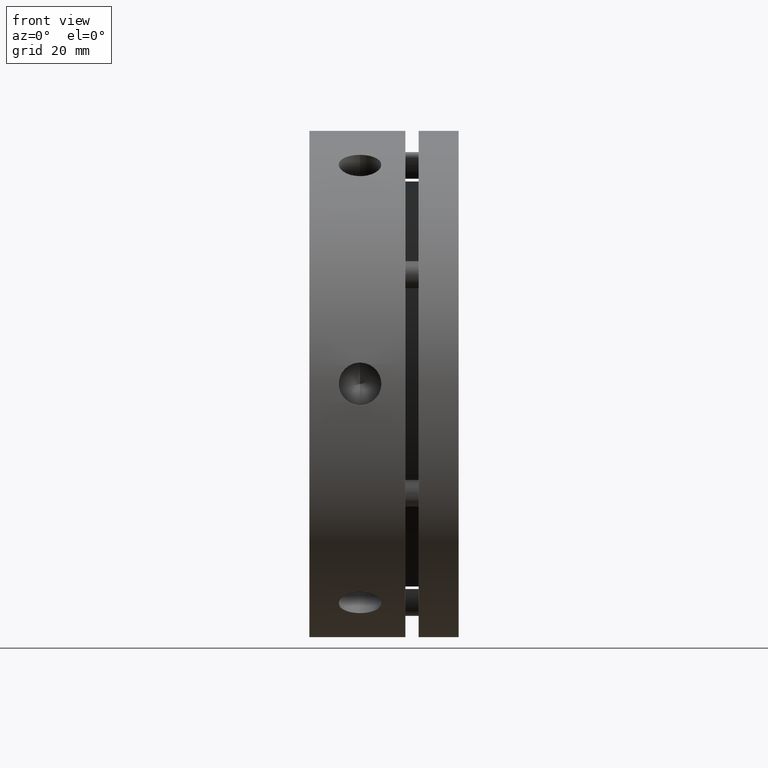
[diagram: clean part render]
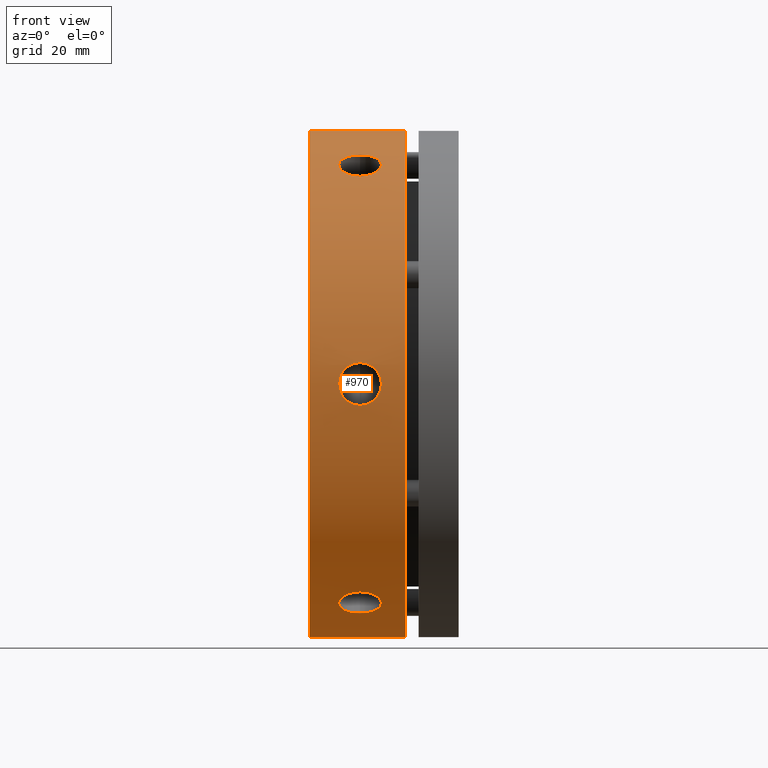
[diagram: same view with one face highlighted and labeled with its STEP entity id]
A machine part, front view. The second image highlights one B-rep face of the part: STEP entity #970.
In plain terms, the highlighted cylindrical surface (partial cylindrical patch) has radius 47.5 mm, axis along (1, 0, 0).
Its self-contained STEP definition (entity closure, byte-faithful):
#54 = VERTEX_POINT ( 'NONE', #1385 ) ;
#87 = VERTEX_POINT ( 'NONE', #1412 ) ;
#102 = VERTEX_POINT ( 'NONE', #1427 ) ;
#109 = VERTEX_POINT ( 'NONE', #1425 ) ;
#124 = VERTEX_POINT ( 'NONE', #1445 ) ;
#218 = VERTEX_POINT ( 'NONE', #1526 ) ;
#227 = VERTEX_POINT ( 'NONE', #1528 ) ;
#230 = VERTEX_POINT ( 'NONE', #1536 ) ;
#237 = VERTEX_POINT ( 'NONE', #1542 ) ;
#270 = VERTEX_POINT ( 'NONE', #1573 ) ;
#399 = CARTESIAN_POINT ( 'NONE',  ( 5.704031855840906200, -24.85716007581634600, 40.47752882744784800 ) ) ;
#970 = ADVANCED_FACE ( 'NONE', ( #3123, #3131, #3127, #3110 ), #3135, .T. ) ;
#1093 = B_SPLINE_CURVE_WITH_KNOTS ( 'NONE', 3,
 ( #3630, #3626, #3632, #3633, #3634, #3635, #3636, #3637, #3638, #3639, #3640, #3641, #3642, #3643, #3644, #3645, #3646, #3647, #3648, #3649, #3650, #3651, #3652, #3653, #3654, #3655, #3656, #3657, #3658, #3659, #3660, #3661, #3662, #3663 ),
 .UNSPECIFIED., .F., .F.,
 ( 4, 2, 2, 2, 2, 2, 2, 2, 2, 2, 2, 2, 2, 2, 2, 2, 4 ),
 ( 0.01876578023979333700, 0.01954757151326307800, 0.02032936278673281800, 0.02111115406020255800, 0.02189294533367230200, 0.02267473660714204200, 0.02345652788061178300, 0.02423831915408152700, 0.02502011042755127000, 0.02580190170102101100, 0.02658369297449075400, 0.02736548424796049500, 0.02814727552143023900, 0.02892906679489998200, 0.02971085806836972300, 0.03049264934183946700, 0.03127444061530920700 ),
 .UNSPECIFIED. ) ;
#1095 = B_SPLINE_CURVE_WITH_KNOTS ( 'NONE', 3,
 ( #2702, #2703, #2709, #2710, #2711, #2712, #2713, #2714, #2715, #2716, #2717, #2718, #2719, #2720, #2721, #2722, #2723, #2724, #2725, #2726, #2727, #2728, #2729, #2730, #2731, #2732, #2733, #2734, #2735, #2736, #2737, #2738, #2739, #2740 ),
 .UNSPECIFIED., .F., .F.,
 ( 4, 2, 2, 2, 2, 2, 2, 2, 2, 2, 2, 2, 2, 2, 2, 2, 4 ),
 ( 0.006257119855999899700, 0.007038911129986990000, 0.007820702403974080400, 0.008602493677961172600, 0.009384284951948263000, 0.01016607622593535300, 0.01094786749992244400, 0.01172965877390953400, 0.01251145004789662500, 0.01329324132188371500, 0.01407503259587080700, 0.01485682386985789700, 0.01563861514384498600, 0.01642040641783208000, 0.01720219769181917000, 0.01798398896580626100, 0.01876578023979335100 ),
 .UNSPECIFIED. ) ;
#1097 = B_SPLINE_CURVE_WITH_KNOTS ( 'NONE', 3,
 ( #3588, #3584, #3591, #3592, #3593, #3594, #3595, #3596, #3597, #3598, #3599, #3600, #3601, #3602, #3603, #3604, #3605, #3606, #3607, #3608, #3609, #3610, #3611, #3612, #3613, #3614, #3615, #3616, #3617, #3618, #3619, #3620, #3621, #3622 ),
 .UNSPECIFIED., .F., .F.,
 ( 4, 2, 2, 2, 2, 2, 2, 2, 2, 2, 2, 2, 2, 2, 2, 2, 4 ),
 ( 0.01876578023979334400, 0.01954757151326308500, 0.02032936278673282500, 0.02111115406020256500, 0.02189294533367230900, 0.02267473660714204900, 0.02345652788061179000, 0.02423831915408153300, 0.02502011042755127400, 0.02580190170102101400, 0.02658369297449075800, 0.02736548424796049800, 0.02814727552143023900, 0.02892906679489998200, 0.02971085806836971900, 0.03049264934183946300, 0.03127444061530920700 ),
 .UNSPECIFIED. ) ;
#1099 = B_SPLINE_CURVE_WITH_KNOTS ( 'NONE', 3,
 ( #2704, #2701, #2742, #2743, #2744, #2745, #2746, #2747, #2748, #2749, #2750, #2751, #2752, #2753, #2754, #2755, #2756, #2757, #2758, #2759, #2760, #2761, #2762, #2763, #2764, #2765, #2766, #2767, #2768, #2769, #2770, #2771, #2772, #2773 ),
 .UNSPECIFIED., .F., .F.,
 ( 4, 2, 2, 2, 2, 2, 2, 2, 2, 2, 2, 2, 2, 2, 2, 2, 4 ),
 ( 0.006257119855999912700, 0.007038911129987003100, 0.007820702403974092600, 0.008602493677961183000, 0.009384284951948273400, 0.01016607622593536400, 0.01094786749992245400, 0.01172965877390954500, 0.01251145004789663300, 0.01329324132188372400, 0.01407503259587081200, 0.01485682386985790300, 0.01563861514384499000, 0.01642040641783208000, 0.01720219769181917000, 0.01798398896580625700, 0.01876578023979334400 ),
 .UNSPECIFIED. ) ;
#1100 = B_SPLINE_CURVE_WITH_KNOTS ( 'NONE', 3,
 ( #2919, #2914, #2920, #2921, #2922, #2923, #2924, #2925, #2926, #2927, #2928, #2929, #2930, #399, #3561, #3562, #3563, #3564, #3565, #3566, #3567, #3568, #3569, #3570, #3571, #3572, #3573, #3574, #3575, #3576, #3577, #3578, #3579, #3580 ),
 .UNSPECIFIED., .F., .F.,
 ( 4, 2, 2, 2, 2, 2, 2, 2, 2, 2, 2, 2, 2, 2, 2, 2, 4 ),
 ( 0.01876578023979335100, 0.01954757151326309100, 0.02032936278673283200, 0.02111115406020257600, 0.02189294533367231600, 0.02267473660714206000, 0.02345652788061180400, 0.02423831915408154700, 0.02502011042755129100, 0.02580190170102103500, 0.02658369297449077900, 0.02736548424796051900, 0.02814727552143026300, 0.02892906679490000700, 0.02971085806836974700, 0.03049264934183949100, 0.03127444061530923500 ),
 .UNSPECIFIED. ) ;
#1101 = B_SPLINE_CURVE_WITH_KNOTS ( 'NONE', 3,
 ( #2708, #2741, #2774, #2775, #2776, #2777, #2778, #2779, #2780, #2781, #2782, #2783, #2784, #2785, #2786, #2787, #2788, #2789, #2790, #2791, #2792, #2793, #2794, #2795, #2796, #2797, #2798, #2799, #2800, #2801, #2802, #2803, #2804, #2805 ),
 .UNSPECIFIED., .F., .F.,
 ( 4, 2, 2, 2, 2, 2, 2, 2, 2, 2, 2, 2, 2, 2, 2, 2, 4 ),
 ( 0.006257119855999903100, 0.007038911129986992600, 0.007820702403974082200, 0.008602493677961172600, 0.009384284951948261200, 0.01016607622593535200, 0.01094786749992244000, 0.01172965877390953100, 0.01251145004789662100, 0.01329324132188371000, 0.01407503259587080000, 0.01485682386985788900, 0.01563861514384497900, 0.01642040641783206600, 0.01720219769181916000, 0.01798398896580624700, 0.01876578023979333700 ),
 .UNSPECIFIED. ) ;
#1385 = CARTESIAN_POINT ( 'NONE',  ( -1.387778780781445700E-014, 0.0000000000000000000, -47.50000000000000000 ) ) ;
#1412 = CARTESIAN_POINT ( 'NONE',  ( 9.499999999999989300, -47.33127929815546500, 4.000000000000012400 ) ) ;
#1425 = CARTESIAN_POINT ( 'NONE',  ( 17.99999999999999300, 5.817072295949928200E-015, 47.50000000000000000 ) ) ;
#1427 = CARTESIAN_POINT ( 'NONE',  ( 9.499999999999989300, -27.12974126421548200, 38.99009026581912700 ) ) ;
#1445 = CARTESIAN_POINT ( 'NONE',  ( 9.499999999999989300, -27.12974126421550000, -38.99009026581911300 ) ) ;
#1526 = CARTESIAN_POINT ( 'NONE',  ( 17.99999999999999300, 0.0000000000000000000, -47.50000000000000000 ) ) ;
#1528 = CARTESIAN_POINT ( 'NONE',  ( 9.499999999999989300, -47.33127929815547200, -3.999999999999988000 ) ) ;
#1536 = CARTESIAN_POINT ( 'NONE',  ( 9.499999999999989300, -20.20153803393997500, 42.99009026581912700 ) ) ;
#1542 = CARTESIAN_POINT ( 'NONE',  ( -1.387778780781445700E-014, 5.817072295949928200E-015, 47.50000000000000000 ) ) ;
#1573 = CARTESIAN_POINT ( 'NONE',  ( 9.499999999999989300, -20.20153803393999000, -42.99009026581912000 ) ) ;
#1784 = CIRCLE ( 'NONE', #1901, 47.50000000000000000 ) ;
#1786 = CIRCLE ( 'NONE', #1900, 47.50000000000000000 ) ;
#1827 = LINE ( 'NONE', #2893, #1830 ) ;
#1830 = VECTOR ( 'NONE', #2906, 1000.000000000000000 ) ;
#1900 = AXIS2_PLACEMENT_3D ( 'NONE', #2705, #2706, #2707 ) ;
#1901 = AXIS2_PLACEMENT_3D ( 'NONE', #2806, #2807, #2808 ) ;
#2326 = DIRECTION ( 'NONE',  ( 0.0000000000000000000, 0.0000000000000000000, -1.000000000000000000 ) ) ;
#2327 = CARTESIAN_POINT ( 'NONE',  ( 13.99999999999998800, 0.0000000000000000000, 0.0000000000000000000 ) ) ;
#2328 = DIRECTION ( 'NONE',  ( 1.000000000000000000, 0.0000000000000000000, 0.0000000000000000000 ) ) ;
#2701 = CARTESIAN_POINT ( 'NONE',  ( 9.760971475047595500, -47.33127929815546500, 4.000000000000013300 ) ) ;
#2702 = CARTESIAN_POINT ( 'NONE',  ( 9.499999999999989300, -20.20153803393997500, 42.99009026581912700 ) ) ;
#2703 = CARTESIAN_POINT ( 'NONE',  ( 9.760971475047595500, -20.20153803393997500, 42.99009026581912700 ) ) ;
#2704 = CARTESIAN_POINT ( 'NONE',  ( 9.499999999999989300, -47.33127929815546500, 4.000000000000012400 ) ) ;
#2705 = CARTESIAN_POINT ( 'NONE',  ( -1.387778780781445700E-014, 0.0000000000000000000, 0.0000000000000000000 ) ) ;
#2706 = DIRECTION ( 'NONE',  ( 1.000000000000000000, 0.0000000000000000000, 0.0000000000000000000 ) ) ;
#2707 = DIRECTION ( 'NONE',  ( 0.0000000000000000000, 0.0000000000000000000, -1.000000000000000000 ) ) ;
#2708 = CARTESIAN_POINT ( 'NONE',  ( 9.499999999999989300, -27.12974126421550000, -38.99009026581911300 ) ) ;
#2709 = CARTESIAN_POINT ( 'NONE',  ( 10.02605248715087100, -20.22527848975132900, 42.97895701298615000 ) ) ;
#2710 = CARTESIAN_POINT ( 'NONE',  ( 10.53902095489192800, -20.31814011013791100, 42.93513501058210100 ) ) ;
#2711 = CARTESIAN_POINT ( 'NONE',  ( 10.78835630134450200, -20.38675315658765500, 42.90268539120922500 ) ) ;
#2712 = CARTESIAN_POINT ( 'NONE',  ( 11.27265317463121100, -20.56827545044507800, 42.81595687403627400 ) ) ;
#2713 = CARTESIAN_POINT ( 'NONE',  ( 11.50665646910271000, -20.68150517497733900, 42.76150624024155900 ) ) ;
#2714 = CARTESIAN_POINT ( 'NONE',  ( 11.93982301659374400, -20.94247978508939700, 42.63430089362267900 ) ) ;
#2715 = CARTESIAN_POINT ( 'NONE',  ( 12.14175708357037400, -21.09113505600706500, 42.56112082860320800 ) ) ;
#2716 = CARTESIAN_POINT ( 'NONE',  ( 12.51516527025346200, -21.42566116510206000, 42.39370269009219100 ) ) ;
#2717 = CARTESIAN_POINT ( 'NONE',  ( 12.68059165872984900, -21.60613950822939000, 42.30214808877768500 ) ) ;
#2718 = CARTESIAN_POINT ( 'NONE',  ( 12.97012770340554900, -21.99136320819733800, 42.10317020865641500 ) ) ;
#2719 = CARTESIAN_POINT ( 'NONE',  ( 13.09533123176346300, -22.19859148146204600, 41.99441967078477200 ) ) ;
#2720 = CARTESIAN_POINT ( 'NONE',  ( 13.29597052502822400, -22.62599432129031000, 41.76569319692626400 ) ) ;
#2721 = CARTESIAN_POINT ( 'NONE',  ( 13.37158336742036400, -22.84501087679316500, 41.64638291787606800 ) ) ;
#2722 = CARTESIAN_POINT ( 'NONE',  ( 13.47385331339546100, -23.29324201040375200, 41.39735026240109100 ) ) ;
#2723 = CARTESIAN_POINT ( 'NONE',  ( 13.50018660761995200, -23.52355385554325600, 41.26696356755591200 ) ) ;
#2724 = CARTESIAN_POINT ( 'NONE',  ( 13.49981137718473800, -23.98136361391737700, 41.00261049369551400 ) ) ;
#2725 = CARTESIAN_POINT ( 'NONE',  ( 13.47368411254465300, -24.20532212612001300, 40.87074437608968200 ) ) ;
#2726 = CARTESIAN_POINT ( 'NONE',  ( 13.37167309434663700, -24.64387569992174300, 40.60781643442192700 ) ) ;
#2727 = CARTESIAN_POINT ( 'NONE',  ( 13.29453926093430000, -24.86072786733938100, 40.47533652644045800 ) ) ;
#2728 = CARTESIAN_POINT ( 'NONE',  ( 13.09343942601985600, -25.27217432394408500, 40.21971981457219400 ) ) ;
#2729 = CARTESIAN_POINT ( 'NONE',  ( 12.97043680107246500, -25.46637820330576600, 40.09689371353224600 ) ) ;
#2730 = CARTESIAN_POINT ( 'NONE',  ( 12.67990342529005500, -25.83249811703567300, 39.86200377930663300 ) ) ;
#2731 = CARTESIAN_POINT ( 'NONE',  ( 12.51091927556935300, -26.00497186186153800, 39.74953474234474300 ) ) ;
#2732 = CARTESIAN_POINT ( 'NONE',  ( 12.14186292159515000, -26.31312487353759600, 39.54622021329849000 ) ) ;
#2733 = CARTESIAN_POINT ( 'NONE',  ( 11.94048292126166900, -26.45089611231988900, 39.45404336207128200 ) ) ;
#2734 = CARTESIAN_POINT ( 'NONE',  ( 11.50311538795404500, -26.69364967102421800, 39.29020883122879600 ) ) ;
#2735 = CARTESIAN_POINT ( 'NONE',  ( 11.27045504910944600, -26.79636665656028400, 39.22008053777917500 ) ) ;
#2736 = CARTESIAN_POINT ( 'NONE',  ( 10.78912952688679300, -26.96112870958003400, 39.10700093446387600 ) ) ;
#2737 = CARTESIAN_POINT ( 'NONE',  ( 10.53690245047147100, -27.02440957800023100, 39.06320430707126000 ) ) ;
#2738 = CARTESIAN_POINT ( 'NONE',  ( 10.02055990650838900, -27.10891618732090800, 39.00460622701263700 ) ) ;
#2739 = CARTESIAN_POINT ( 'NONE',  ( 9.760971088509428700, -27.12974126421548200, 38.99009026581912700 ) ) ;
#2740 = CARTESIAN_POINT ( 'NONE',  ( 9.499999999999989300, -27.12974126421548200, 38.99009026581912700 ) ) ;
#2741 = CARTESIAN_POINT ( 'NONE',  ( 9.760971475047595500, -27.12974126421549300, -38.99009026581911300 ) ) ;
#2742 = CARTESIAN_POINT ( 'NONE',  ( 10.02605248715087100, -47.33350784628103700, 3.973873535753463600 ) ) ;
#2743 = CARTESIAN_POINT ( 'NONE',  ( 10.53902095489193200, -47.34198768914772200, 3.871542012260076800 ) ) ;
#2744 = CARTESIAN_POINT ( 'NONE',  ( 10.78835630134450200, -47.34819201765252900, 3.795896561317114900 ) ) ;
#2745 = CARTESIAN_POINT ( 'NONE',  ( 11.27265317463121100, -47.36384406547690400, 3.595329384896891200 ) ) ;
#2746 = CARTESIAN_POINT ( 'NONE',  ( 11.50665646910270300, -47.37330329562466600, 3.470044250091086200 ) ) ;
#2747 = CARTESIAN_POINT ( 'NONE',  ( 11.93982301659374200, -47.39362753901151100, 3.180430934681860700 ) ) ;
#2748 = CARTESIAN_POINT ( 'NONE',  ( 12.14175708357036700, -47.40457937911289600, 3.015101661150972700 ) ) ;
#2749 = CARTESIAN_POINT ( 'NONE',  ( 12.51516527025345300, -47.42685407265555900, 2.641684483190027200 ) ) ;
#2750 = CARTESIAN_POINT ( 'NONE',  ( 12.68059165872984400, -47.43780463364751700, 2.439608352551585900 ) ) ;
#2751 = CARTESIAN_POINT ( 'NONE',  ( 12.97012770340554500, -47.45809658465528000, 2.006505902178871800 ) ) ;
#2752 = CARTESIAN_POINT ( 'NONE',  ( 13.09533123176346000, -47.46752999281557100, 1.772665684213433200 ) ) ;
#2753 = CARTESIAN_POINT ( 'NONE',  ( 13.29597052502822200, -47.48314847585020000, 1.288160730343287200 ) ) ;
#2754 = CARTESIAN_POINT ( 'NONE',  ( 13.37158336742035800, -47.48933102101155200, 1.038831689903349800 ) ) ;
#2755 = CARTESIAN_POINT ( 'NONE',  ( 13.47385331339546400, -47.49777798180363700, 0.5261358136920018000 ) ) ;
#2756 = CARTESIAN_POINT ( 'NONE',  ( 13.50018660761995500, -47.50001571432195400, 0.2614865575861264900 ) ) ;
#2757 = CARTESIAN_POINT ( 'NONE',  ( 13.49981137718474000, -47.49998411597741900, -0.2671648601964621300 ) ) ;
#2758 = CARTESIAN_POINT ( 'NONE',  ( 13.47368411254465500, -47.49776396433364300, -0.5270516799606372900 ) ) ;
#2759 = CARTESIAN_POINT ( 'NONE',  ( 13.37167309434663700, -47.48933847438548400, -1.038314186627276000 ) ) ;
#2760 = CARTESIAN_POINT ( 'NONE',  ( 13.29453926093429700, -47.48303359229132100, -1.292353626467387200 ) ) ;
#2761 = CARTESIAN_POINT ( 'NONE',  ( 13.09343942601985800, -47.46738625448392700, -1.776485066118290900 ) ) ;
#2762 = CARTESIAN_POINT ( 'NONE',  ( 12.97043680107246500, -47.45811767041635700, -2.006083609678971600 ) ) ;
#2763 = CARTESIAN_POINT ( 'NONE',  ( 12.67990342529005200, -47.43775697714867300, -2.440597722913236700 ) ) ;
#2764 = CARTESIAN_POINT ( 'NONE',  ( 12.51091927556935500, -47.42659280641343900, -2.646198885899223400 ) ) ;
#2765 = CARTESIAN_POINT ( 'NONE',  ( 12.14186292159515000, -47.40459376513897600, -3.014724486786499700 ) ) ;
#2766 = CARTESIAN_POINT ( 'NONE',  ( 11.94048292126166400, -47.39365188972649200, -3.180126305096422800 ) ) ;
#2767 = CARTESIAN_POINT ( 'NONE',  ( 11.50311538795404000, -47.37314380335194400, -3.472274319214686800 ) ) ;
#2768 = CARTESIAN_POINT ( 'NONE',  ( 11.27045504910944000, -47.36376941246855000, -3.596293984813898600 ) ) ;
#2769 = CARTESIAN_POINT ( 'NONE',  ( 10.78912952688678800, -47.34822062985752900, -3.795521909966320000 ) ) ;
#2770 = CARTESIAN_POINT ( 'NONE',  ( 10.53690245047146100, -47.34193207214553200, -3.872223063288064500 ) ) ;
#2771 = CARTESIAN_POINT ( 'NONE',  ( 10.02055990650838200, -47.33343795086209100, -3.974706973776774200 ) ) ;
#2772 = CARTESIAN_POINT ( 'NONE',  ( 9.760971088509421600, -47.33127929815544400, -3.999999999999986200 ) ) ;
#2773 = CARTESIAN_POINT ( 'NONE',  ( 9.499999999999989300, -47.33127929815547200, -3.999999999999988000 ) ) ;
#2774 = CARTESIAN_POINT ( 'NONE',  ( 10.02605248715087100, -27.10822935652970100, -39.00508347723268800 ) ) ;
#2775 = CARTESIAN_POINT ( 'NONE',  ( 10.53902095489192800, -27.02384757900981100, -39.06359299832202200 ) ) ;
#2776 = CARTESIAN_POINT ( 'NONE',  ( 10.78835630134450200, -26.96143886106489200, -39.10678882989211800 ) ) ;
#2777 = CARTESIAN_POINT ( 'NONE',  ( 11.27265317463121100, -26.79556861503184000, -39.22062748913937500 ) ) ;
#2778 = CARTESIAN_POINT ( 'NONE',  ( 11.50665646910271500, -26.69179812064733100, -39.29146199015048800 ) ) ;
#2779 = CARTESIAN_POINT ( 'NONE',  ( 11.93982301659375100, -26.45114775392213600, -39.45386995894082100 ) ) ;
#2780 = CARTESIAN_POINT ( 'NONE',  ( 12.14175708357037000, -26.31344432310586300, -39.54601916745225100 ) ) ;
#2781 = CARTESIAN_POINT ( 'NONE',  ( 12.51516527025345800, -26.00119290755351300, -39.75201820690217100 ) ) ;
#2782 = CARTESIAN_POINT ( 'NONE',  ( 12.68059165872984700, -25.83166512541813000, -39.86253973622610400 ) ) ;
#2783 = CARTESIAN_POINT ( 'NONE',  ( 12.97012770340554900, -25.46673337645796300, -40.09666430647755000 ) ) ;
#2784 = CARTESIAN_POINT ( 'NONE',  ( 13.09533123176346300, -25.26893851135354300, -40.22175398657134300 ) ) ;
#2785 = CARTESIAN_POINT ( 'NONE',  ( 13.29597052502822400, -24.85715415455990000, -40.47753246658298600 ) ) ;
#2786 = CARTESIAN_POINT ( 'NONE',  ( 13.37158336742036400, -24.64432014421839400, -40.60755122797272100 ) ) ;
#2787 = CARTESIAN_POINT ( 'NONE',  ( 13.47385331339546100, -24.20453597139987800, -40.87121444870909700 ) ) ;
#2788 = CARTESIAN_POINT ( 'NONE',  ( 13.50018660761995200, -23.97646185877870600, -41.00547700996978800 ) ) ;
#2789 = CARTESIAN_POINT ( 'NONE',  ( 13.49981137718473800, -23.51862050206004900, -41.26977535389198700 ) ) ;
#2790 = CARTESIAN_POINT ( 'NONE',  ( 13.47368411254465100, -23.29244183821364400, -41.39779605605033200 ) ) ;
#2791 = CARTESIAN_POINT ( 'NONE',  ( 13.37167309434663500, -22.84546277446374400, -41.64613062104919500 ) ) ;
#2792 = CARTESIAN_POINT ( 'NONE',  ( 13.29453926093430000, -22.62230572495196400, -41.76769015290785300 ) ) ;
#2793 = CARTESIAN_POINT ( 'NONE',  ( 13.09343942601985400, -22.19521193053984500, -41.99620488069049200 ) ) ;
#2794 = CARTESIAN_POINT ( 'NONE',  ( 12.97043680107246600, -21.99173946711060900, -42.10297732321121300 ) ) ;
#2795 = CARTESIAN_POINT ( 'NONE',  ( 12.67990342529005500, -21.60525886011302900, -42.30260150221987200 ) ) ;
#2796 = CARTESIAN_POINT ( 'NONE',  ( 12.51091927556935300, -21.42162094455191800, -42.39573362824397400 ) ) ;
#2797 = CARTESIAN_POINT ( 'NONE',  ( 12.14186292159515200, -21.09146889160137300, -42.56094470008500300 ) ) ;
#2798 = CARTESIAN_POINT ( 'NONE',  ( 11.94048292126166400, -20.94275577740659600, -42.63416966716771100 ) ) ;
#2799 = CARTESIAN_POINT ( 'NONE',  ( 11.50311538795404300, -20.67949413232773600, -42.76248315044347900 ) ) ;
#2800 = CARTESIAN_POINT ( 'NONE',  ( 11.27045504910943800, -20.56740275590827200, -42.81637452259308000 ) ) ;
#2801 = CARTESIAN_POINT ( 'NONE',  ( 10.78912952688678400, -20.38709192027749500, -42.90252284443019400 ) ) ;
#2802 = CARTESIAN_POINT ( 'NONE',  ( 10.53690245047146200, -20.31752249414530500, -42.93542737035934200 ) ) ;
#2803 = CARTESIAN_POINT ( 'NONE',  ( 10.02055990650838200, -20.22452176354119800, -42.97931320078940600 ) ) ;
#2804 = CARTESIAN_POINT ( 'NONE',  ( 9.760971088509427000, -20.20153803393998600, -42.99009026581912000 ) ) ;
#2805 = CARTESIAN_POINT ( 'NONE',  ( 9.499999999999989300, -20.20153803393999000, -42.99009026581912000 ) ) ;
#2806 = CARTESIAN_POINT ( 'NONE',  ( 17.99999999999999300, 0.0000000000000000000, 0.0000000000000000000 ) ) ;
#2807 = DIRECTION ( 'NONE',  ( -1.000000000000000000, -0.0000000000000000000, -0.0000000000000000000 ) ) ;
#2808 = DIRECTION ( 'NONE',  ( 0.0000000000000000000, 0.0000000000000000000, -1.000000000000000000 ) ) ;
#2893 = CARTESIAN_POINT ( 'NONE',  ( 13.99999999999998800, 0.0000000000000000000, -47.50000000000000000 ) ) ;
#2906 = DIRECTION ( 'NONE',  ( 1.000000000000000000, 0.0000000000000000000, 0.0000000000000000000 ) ) ;
#2914 = CARTESIAN_POINT ( 'NONE',  ( 9.239028911663249100, -27.12974126421548200, 38.99009026581913400 ) ) ;
#2919 = CARTESIAN_POINT ( 'NONE',  ( 9.499999999999989300, -27.12974126421548200, 38.99009026581912700 ) ) ;
#2920 = CARTESIAN_POINT ( 'NONE',  ( 8.973948294362534400, -27.10822942104241700, 39.00508343220000300 ) ) ;
#2921 = CARTESIAN_POINT ( 'NONE',  ( 8.460980543964389300, -27.02384788961078900, 39.06359278325446400 ) ) ;
#2922 = CARTESIAN_POINT ( 'NONE',  ( 8.211645535757149600, -26.96143935264534300, 39.10678849021783100 ) ) ;
#2923 = CARTESIAN_POINT ( 'NONE',  ( 7.727349294091225400, -26.79556959818216600, 39.22062681668896300 ) ) ;
#2924 = CARTESIAN_POINT ( 'NONE',  ( 7.493346229924173800, -26.69179939094754100, 39.29146112572402000 ) ) ;
#2925 = CARTESIAN_POINT ( 'NONE',  ( 7.060180061226575700, -26.45114969300890800, 39.45386865744479400 ) ) ;
#2926 = CARTESIAN_POINT ( 'NONE',  ( 6.858246142036367800, -26.31344664734432500, 39.54601761841193100 ) ) ;
#2927 = CARTESIAN_POINT ( 'NONE',  ( 6.484838143995224500, -26.00119613568871200, 39.75201609292074100 ) ) ;
#2928 = CARTESIAN_POINT ( 'NONE',  ( 6.319411652311662100, -25.83166871601191900, 39.86253740652598800 ) ) ;
#2929 = CARTESIAN_POINT ( 'NONE',  ( 6.029875421132860700, -25.46673789726769100, 40.09666143224821200 ) ) ;
#2930 = CARTESIAN_POINT ( 'NONE',  ( 5.904671738956798400, -25.26894357346547800, 40.22175080342284300 ) ) ;
#3110 = FACE_BOUND ( 'NONE', #3390, .T. ) ;
#3123 = FACE_OUTER_BOUND ( 'NONE', #3388, .T. ) ;
#3127 = FACE_BOUND ( 'NONE', #3391, .T. ) ;
#3131 = FACE_BOUND ( 'NONE', #3393, .T. ) ;
#3135 = CYLINDRICAL_SURFACE ( 'NONE', #4656, 47.50000000000000000 ) ;
#3388 = EDGE_LOOP ( 'NONE', ( #4566, #4565, #4564, #4563 ) ) ;
#3390 = EDGE_LOOP ( 'NONE', ( #4556, #4555 ) ) ;
#3391 = EDGE_LOOP ( 'NONE', ( #4560, #4559 ) ) ;
#3393 = EDGE_LOOP ( 'NONE', ( #4562, #4561 ) ) ;
#3464 = EDGE_CURVE ( 'NONE', #237, #54, #1786, .T. ) ;
#3465 = EDGE_CURVE ( 'NONE', #230, #102, #1095, .T. ) ;
#3466 = EDGE_CURVE ( 'NONE', #87, #227, #1099, .T. ) ;
#3467 = EDGE_CURVE ( 'NONE', #124, #270, #1101, .T. ) ;
#3468 = EDGE_CURVE ( 'NONE', #218, #109, #1784, .T. ) ;
#3561 = CARTESIAN_POINT ( 'NONE',  ( 5.628418660750588400, -24.64432651335752300, 40.60754735928222900 ) ) ;
#3562 = CARTESIAN_POINT ( 'NONE',  ( 5.526147840892643400, -24.20454328748996500, 40.87121011271074200 ) ) ;
#3563 = CARTESIAN_POINT ( 'NONE',  ( 5.499814006007952100, -23.97647039748858300, 41.00547202047545900 ) ) ;
#3564 = CARTESIAN_POINT ( 'NONE',  ( 5.500187995876750300, -23.51862823127780200, 41.26977095238820000 ) ) ;
#3565 = CARTESIAN_POINT ( 'NONE',  ( 5.526314746948722600, -23.29244917393169700, 41.39779193149617200 ) ) ;
#3566 = CARTESIAN_POINT ( 'NONE',  ( 5.628324874620855800, -22.84546933546991500, 41.64612702479961100 ) ) ;
#3567 = CARTESIAN_POINT ( 'NONE',  ( 5.705458313430527000, -22.62231191270786500, 41.76768680485206200 ) ) ;
#3568 = CARTESIAN_POINT ( 'NONE',  ( 5.906557640547390500, -22.19521712434566400, 41.99620213908883700 ) ) ;
#3569 = CARTESIAN_POINT ( 'NONE',  ( 6.029560090688915100, -21.99174419758032400, 42.10297485494645300 ) ) ;
#3570 = CARTESIAN_POINT ( 'NONE',  ( 6.320093230973155200, -21.60526271236529500, 42.30259953735394200 ) ) ;
#3571 = CARTESIAN_POINT ( 'NONE',  ( 6.489077374479884400, -21.42162431737642700, 42.39573192620109400 ) ) ;
#3572 = CARTESIAN_POINT ( 'NONE',  ( 6.858133871741749500, -21.09147138422787300, 42.56094346700289300 ) ) ;
#3573 = CARTESIAN_POINT ( 'NONE',  ( 7.059513996358612400, -20.94275787940473100, 42.63416863596425800 ) ) ;
#3574 = CARTESIAN_POINT ( 'NONE',  ( 7.496881866757592900, -20.67949553814117900, 42.76248247194271800 ) ) ;
#3575 = CARTESIAN_POINT ( 'NONE',  ( 7.729542514548992200, -20.56740381522990500, 42.81637401440468700 ) ) ;
#3576 = CARTESIAN_POINT ( 'NONE',  ( 8.210868633865267400, -20.38709246264886200, 42.90252258736691700 ) ) ;
#3577 = CARTESIAN_POINT ( 'NONE',  ( 8.463096024885052400, -20.31752283979970400, 42.93542720697618600 ) ) ;
#3578 = CARTESIAN_POINT ( 'NONE',  ( 8.979439324812879900, -20.22452183094743800, 42.97931316925463800 ) ) ;
#3579 = CARTESIAN_POINT ( 'NONE',  ( 9.239028525125077000, -20.20153803393996800, 42.99009026581912000 ) ) ;
#3580 = CARTESIAN_POINT ( 'NONE',  ( 9.499999999999989300, -20.20153803393997500, 42.99009026581912700 ) ) ;
#3584 = CARTESIAN_POINT ( 'NONE',  ( 9.239028911663247400, -47.33127929815546500, -3.999999999999988000 ) ) ;
#3588 = CARTESIAN_POINT ( 'NONE',  ( 9.499999999999989300, -47.33127929815547200, -3.999999999999988000 ) ) ;
#3591 = CARTESIAN_POINT ( 'NONE',  ( 8.973948294362532600, -47.33350783953793700, -3.973873614139450600 ) ) ;
#3592 = CARTESIAN_POINT ( 'NONE',  ( 8.460980543964391000, -47.34198765819422100, -3.871542388782190700 ) ) ;
#3593 = CARTESIAN_POINT ( 'NONE',  ( 8.211645535757140700, -47.34819196927620100, -3.795897156875411400 ) ) ;
#3594 = CARTESIAN_POINT ( 'NONE',  ( 7.727349294091217400, -47.36384397469290500, -3.595330572555246900 ) ) ;
#3595 = CARTESIAN_POINT ( 'NONE',  ( 7.493346229924165800, -47.37330318215949600, -3.470045782416549200 ) ) ;
#3596 = CARTESIAN_POINT ( 'NONE',  ( 7.060180061226565100, -47.39362738142629200, -3.180433264728257800 ) ) ;
#3597 = CARTESIAN_POINT ( 'NONE',  ( 6.858246142036364300, -47.40457919972386200, -3.015104448520674400 ) ) ;
#3598 = CARTESIAN_POINT ( 'NONE',  ( 6.484838143995218300, -47.42685385596153200, -2.641688335827816500 ) ) ;
#3599 = CARTESIAN_POINT ( 'NONE',  ( 6.319411652311657700, -47.43780441136490800, -2.439612626947071500 ) ) ;
#3600 = CARTESIAN_POINT ( 'NONE',  ( 6.029875421132857100, -47.45809635590452300, -2.006511254429590000 ) ) ;
#3601 = CARTESIAN_POINT ( 'NONE',  ( 5.904671738956794000, -47.46752976718408200, -1.772671659705197700 ) ) ;
#3602 = CARTESIAN_POINT ( 'NONE',  ( 5.704031855840901800, -47.48314828489493100, -1.288167677869344300 ) ) ;
#3603 = CARTESIAN_POINT ( 'NONE',  ( 5.628418660750587500, -47.48933085519687600, -1.038839140084870900 ) ) ;
#3604 = CARTESIAN_POINT ( 'NONE',  ( 5.526147840892645200, -47.49777788476394800, -0.5261443176110329700 ) ) ;
#3605 = CARTESIAN_POINT ( 'NONE',  ( 5.499814006007951200, -47.50001566264805300, -0.2614964470729435600 ) ) ;
#3606 = CARTESIAN_POINT ( 'NONE',  ( 5.500187995876753000, -47.49998416877218700, 0.2671559657456639100 ) ) ;
#3607 = CARTESIAN_POINT ( 'NONE',  ( 5.526314746948723500, -47.49776406022398600, 0.5270432647653891000 ) ) ;
#3608 = CARTESIAN_POINT ( 'NONE',  ( 5.628324874620860300, -47.48933864044504800, 1.038306706504470000 ) ) ;
#3609 = CARTESIAN_POINT ( 'NONE',  ( 5.705458313430532300, -47.48303378666791000, 1.292346593685709700 ) ) ;
#3610 = CARTESIAN_POINT ( 'NONE',  ( 5.906557640547394100, -47.46738647709014500, 1.776479197349700700 ) ) ;
#3611 = CARTESIAN_POINT ( 'NONE',  ( 6.029560090688916900, -47.45811789807123700, 2.006078278839653200 ) ) ;
#3612 = CARTESIAN_POINT ( 'NONE',  ( 6.320093230973154300, -47.43775720165100300, 2.440593404331954800 ) ) ;
#3613 = CARTESIAN_POINT ( 'NONE',  ( 6.489077374479888000, -47.42659301881332100, 2.646195113926089100 ) ) ;
#3614 = CARTESIAN_POINT ( 'NONE',  ( 6.858133871741753000, -47.40459394357176800, 3.014721711567589100 ) ) ;
#3615 = CARTESIAN_POINT ( 'NONE',  ( 7.059513996358617800, -47.39365204767717900, 3.180123969110922700 ) ) ;
#3616 = CARTESIAN_POINT ( 'NONE',  ( 7.496881866757596500, -47.37314391865973600, 3.472272762494148500 ) ) ;
#3617 = CARTESIAN_POINT ( 'NONE',  ( 7.729542514548999300, -47.36376950202533500, 3.596292813320273800 ) ) ;
#3618 = CARTESIAN_POINT ( 'NONE',  ( 8.210868633865274500, -47.34822067841987100, 3.795521311727301700 ) ) ;
#3619 = CARTESIAN_POINT ( 'NONE',  ( 8.463096024885052400, -47.34193210347879000, 3.872222682251005700 ) ) ;
#3620 = CARTESIAN_POINT ( 'NONE',  ( 8.979439324812876300, -47.33343795725529200, 3.974706899633868100 ) ) ;
#3621 = CARTESIAN_POINT ( 'NONE',  ( 9.239028525125082300, -47.33127929815548600, 4.000000000000013300 ) ) ;
#3622 = CARTESIAN_POINT ( 'NONE',  ( 9.499999999999989300, -47.33127929815546500, 4.000000000000012400 ) ) ;
#3626 = CARTESIAN_POINT ( 'NONE',  ( 9.239028911663245600, -20.20153803393999000, -42.99009026581911300 ) ) ;
#3630 = CARTESIAN_POINT ( 'NONE',  ( 9.499999999999989300, -20.20153803393999000, -42.99009026581912000 ) ) ;
#3632 = CARTESIAN_POINT ( 'NONE',  ( 8.973948294362532600, -20.22527841849552000, -42.97895704633943800 ) ) ;
#3633 = CARTESIAN_POINT ( 'NONE',  ( 8.460980543964389300, -20.31813976858344600, -42.93513517203664500 ) ) ;
#3634 = CARTESIAN_POINT ( 'NONE',  ( 8.211645535757146100, -20.38675261663086500, -42.90268564709322900 ) ) ;
#3635 = CARTESIAN_POINT ( 'NONE',  ( 7.727349294091221000, -20.56827437651076500, -42.81595738924421800 ) ) ;
#3636 = CARTESIAN_POINT ( 'NONE',  ( 7.493346229924169300, -20.68150379121196600, -42.76150690814057500 ) ) ;
#3637 = CARTESIAN_POINT ( 'NONE',  ( 7.060180061226570400, -20.94247768841739400, -42.63430192217306600 ) ) ;
#3638 = CARTESIAN_POINT ( 'NONE',  ( 6.858246142036367800, -21.09113255237956600, -42.56112206693261200 ) ) ;
#3639 = CARTESIAN_POINT ( 'NONE',  ( 6.484838143995225400, -21.42565772027284200, -42.39370442874855600 ) ) ;
#3640 = CARTESIAN_POINT ( 'NONE',  ( 6.319411652311663000, -21.60613569535301100, -42.30215003347306900 ) ) ;
#3641 = CARTESIAN_POINT ( 'NONE',  ( 6.029875421132863300, -21.99135845863686000, -42.10317268667781600 ) ) ;
#3642 = CARTESIAN_POINT ( 'NONE',  ( 5.904671738956795800, -22.19858619371861200, -41.99442246312806000 ) ) ;
#3643 = CARTESIAN_POINT ( 'NONE',  ( 5.704031855840903600, -22.62598820907860300, -41.76569650531718000 ) ) ;
#3644 = CARTESIAN_POINT ( 'NONE',  ( 5.628418660750589300, -22.84500434183934600, -41.64638649936710400 ) ) ;
#3645 = CARTESIAN_POINT ( 'NONE',  ( 5.526147840892643400, -23.29323459727398300, -41.39735443032179100 ) ) ;
#3646 = CARTESIAN_POINT ( 'NONE',  ( 5.499814006007952100, -23.52354526515947700, -41.26696846754842300 ) ) ;
#3647 = CARTESIAN_POINT ( 'NONE',  ( 5.500187995876750300, -23.98135593749439900, -41.00261498664255600 ) ) ;
#3648 = CARTESIAN_POINT ( 'NONE',  ( 5.526314746948722600, -24.20531488629230300, -40.87074866673077600 ) ) ;
#3649 = CARTESIAN_POINT ( 'NONE',  ( 5.628324874620855800, -24.64386930497514400, -40.60782031829513300 ) ) ;
#3650 = CARTESIAN_POINT ( 'NONE',  ( 5.705458313430530600, -24.86072187396006300, -40.47534021116638300 ) ) ;
#3651 = CARTESIAN_POINT ( 'NONE',  ( 5.906557640547391400, -25.27216935274449800, -40.21972294173914300 ) ) ;
#3652 = CARTESIAN_POINT ( 'NONE',  ( 6.029560090688916000, -25.46637370049091900, -40.09689657610680100 ) ) ;
#3653 = CARTESIAN_POINT ( 'NONE',  ( 6.320093230973155200, -25.83249448928572200, -39.86200613302199300 ) ) ;
#3654 = CARTESIAN_POINT ( 'NONE',  ( 6.489077374479884400, -26.00496870143691900, -39.74953681227501100 ) ) ;
#3655 = CARTESIAN_POINT ( 'NONE',  ( 6.858133871741749500, -26.31312255934392800, -39.54622175543531900 ) ) ;
#3656 = CARTESIAN_POINT ( 'NONE',  ( 7.059513996358612400, -26.45089416827244500, -39.45404466685334200 ) ) ;
#3657 = CARTESIAN_POINT ( 'NONE',  ( 7.496881866757589400, -26.69364838051857400, -39.29020970944856800 ) ) ;
#3658 = CARTESIAN_POINT ( 'NONE',  ( 7.729542514548994000, -26.79636568679542900, -39.22008120108443300 ) ) ;
#3659 = CARTESIAN_POINT ( 'NONE',  ( 8.210868633865269200, -26.96112821577100500, -39.10700127563961800 ) ) ;
#3660 = CARTESIAN_POINT ( 'NONE',  ( 8.463096024885047100, -27.02440926367908200, -39.06320452472518700 ) ) ;
#3661 = CARTESIAN_POINT ( 'NONE',  ( 8.979439324812876300, -27.10891612630786400, -39.00460626962075800 ) ) ;
#3662 = CARTESIAN_POINT ( 'NONE',  ( 9.239028525125077000, -27.12974126421549700, -38.99009026581910600 ) ) ;
#3663 = CARTESIAN_POINT ( 'NONE',  ( 9.499999999999989300, -27.12974126421550000, -38.99009026581911300 ) ) ;
#4058 = CARTESIAN_POINT ( 'NONE',  ( 13.99999999999998800, 5.817072295949928200E-015, 47.50000000000000000 ) ) ;
#4067 = DIRECTION ( 'NONE',  ( 1.000000000000000000, 0.0000000000000000000, 0.0000000000000000000 ) ) ;
#4373 = LINE ( 'NONE', #4058, #4376 ) ;
#4376 = VECTOR ( 'NONE', #4067, 1000.000000000000000 ) ;
#4555 = ORIENTED_EDGE ( 'NONE', *, *, #3467, .T. ) ;
#4556 = ORIENTED_EDGE ( 'NONE', *, *, #4615, .T. ) ;
#4559 = ORIENTED_EDGE ( 'NONE', *, *, #3466, .T. ) ;
#4560 = ORIENTED_EDGE ( 'NONE', *, *, #4611, .T. ) ;
#4561 = ORIENTED_EDGE ( 'NONE', *, *, #3465, .T. ) ;
#4562 = ORIENTED_EDGE ( 'NONE', *, *, #4607, .T. ) ;
#4563 = ORIENTED_EDGE ( 'NONE', *, *, #3468, .T. ) ;
#4564 = ORIENTED_EDGE ( 'NONE', *, *, #4604, .T. ) ;
#4565 = ORIENTED_EDGE ( 'NONE', *, *, #3464, .T. ) ;
#4566 = ORIENTED_EDGE ( 'NONE', *, *, #4749, .F. ) ;
#4604 = EDGE_CURVE ( 'NONE', #54, #218, #1827, .T. ) ;
#4607 = EDGE_CURVE ( 'NONE', #102, #230, #1100, .T. ) ;
#4611 = EDGE_CURVE ( 'NONE', #227, #87, #1097, .T. ) ;
#4615 = EDGE_CURVE ( 'NONE', #270, #124, #1093, .T. ) ;
#4656 = AXIS2_PLACEMENT_3D ( 'NONE', #2327, #2328, #2326 ) ;
#4749 = EDGE_CURVE ( 'NONE', #237, #109, #4373, .T. ) ;